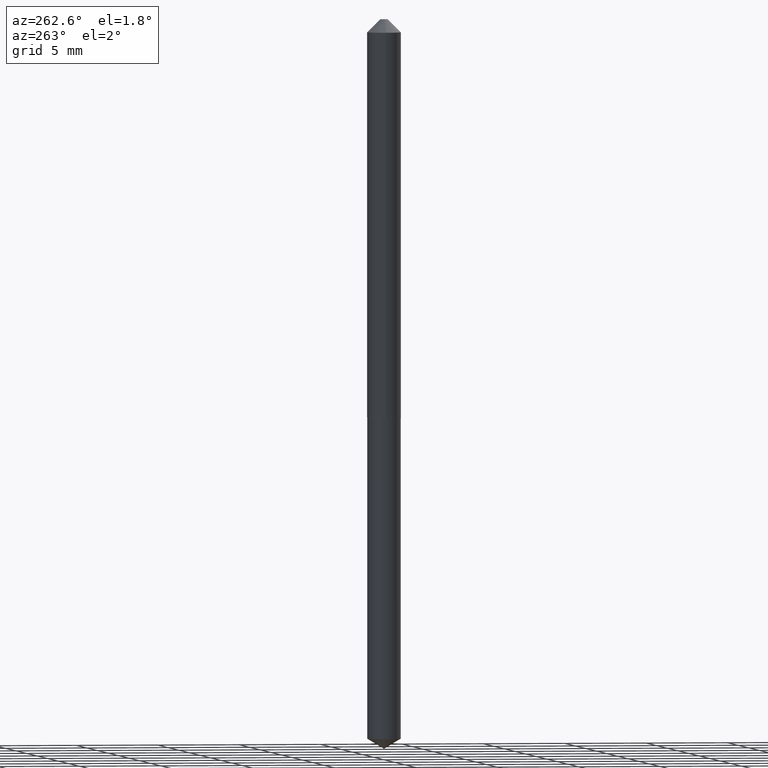
[diagram: clean part render]
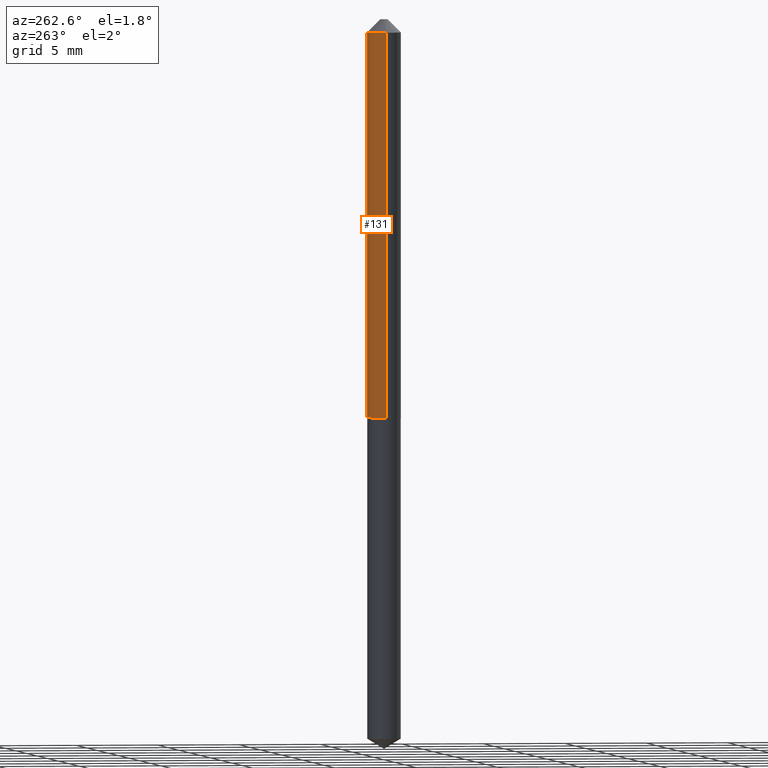
[diagram: same view with one face highlighted and labeled with its STEP entity id]
A machine part, auxiliary view. The second image highlights one B-rep face of the part: STEP entity #131.
In plain terms, the highlighted cylindrical surface (edge-blend (fillet) strip) has radius 1.0287 mm, axis along (-0, 0, 1).
Its self-contained STEP definition (entity closure, byte-faithful):
#3 = EDGE_CURVE ( 'NONE', #41, #15, #386, .T. ) ;
#9 = FACE_OUTER_BOUND ( 'NONE', #119, .T. ) ;
#11 = AXIS2_PLACEMENT_3D ( 'NONE', #390, #221, #243 ) ;
#15 = VERTEX_POINT ( 'NONE', #181 ) ;
#20 = ORIENTED_EDGE ( 'NONE', *, *, #99, .F. ) ;
#21 = AXIS2_PLACEMENT_3D ( 'NONE', #28, #355, #266 ) ;
#28 = CARTESIAN_POINT ( 'NONE',  ( 2.336645444309897725E-29, -3.336110419264625060E-15, -0.9554999999999997939 ) ) ;
#33 = DIRECTION ( 'NONE',  ( 1.000000000000000000, -6.982962677686265922E-15, 4.876176775795934672E-29 ) ) ;
#41 = VERTEX_POINT ( 'NONE', #240 ) ;
#57 = EDGE_CURVE ( 'NONE', #254, #41, #98, .T. ) ;
#85 = LINE ( 'NONE', #145, #128 ) ;
#86 = ORIENTED_EDGE ( 'NONE', *, *, #57, .T. ) ;
#98 = CIRCLE ( 'NONE', #21, 0.04050000000000011924 ) ;
#99 = EDGE_CURVE ( 'NONE', #339, #15, #204, .T. ) ;
#102 = AXIS2_PLACEMENT_3D ( 'NONE', #341, #316, #33 ) ;
#114 = DIRECTION ( 'NONE',  ( -2.445468806185136877E-29, 3.491481338843145188E-15, 1.000000000000000000 ) ) ;
#119 = EDGE_LOOP ( 'NONE', ( #86, #126, #20, #224 ) ) ;
#126 = ORIENTED_EDGE ( 'NONE', *, *, #3, .T. ) ;
#128 = VECTOR ( 'NONE', #114, 39.37007874015748143 ) ;
#131 = ADVANCED_FACE ( 'NONE', ( #9 ), #370, .T. ) ;
#145 = CARTESIAN_POINT ( 'NONE',  ( 0.04050000000000007067, -2.828099884462942771E-16, 1.974851594197357093E-30 ) ) ;
#154 = DIRECTION ( 'NONE',  ( -2.445468806185136877E-29, 3.491481338843145188E-15, 1.000000000000000000 ) ) ;
#181 = CARTESIAN_POINT ( 'NONE',  ( -0.04050000000000000822, -1.434839797568894869E-15, -0.03125000000000020817 ) ) ;
#204 = CIRCLE ( 'NONE', #11, 0.04050000000000000822 ) ;
#221 = DIRECTION ( 'NONE',  ( -2.445468806185136597E-29, 3.491481338843145583E-15, 1.000000000000000000 ) ) ;
#224 = ORIENTED_EDGE ( 'NONE', *, *, #357, .F. ) ;
#240 = CARTESIAN_POINT ( 'NONE',  ( -0.04050000000000011924, -3.048340611281783834E-15, -0.9554999999999997939 ) ) ;
#243 = DIRECTION ( 'NONE',  ( 1.000000000000000000, -6.982962677686267499E-15, 0.000000000000000000 ) ) ;
#245 = CARTESIAN_POINT ( 'NONE',  ( -0.04050000000000007067, 2.877698079828410774E-16, -1.992168711553240552E-30 ) ) ;
#254 = VERTEX_POINT ( 'NONE', #387 ) ;
#265 = CARTESIAN_POINT ( 'NONE',  ( 0.04050000000000000822, -3.919187802851428847E-16, -0.03125000000000020817 ) ) ;
#266 = DIRECTION ( 'NONE',  ( 1.000000000000000000, -6.982962677686264344E-15, 0.000000000000000000 ) ) ;
#316 = DIRECTION ( 'NONE',  ( -2.445468806185136597E-29, 3.491481338843145583E-15, 1.000000000000000000 ) ) ;
#337 = VECTOR ( 'NONE', #154, 39.37007874015748143 ) ;
#339 = VERTEX_POINT ( 'NONE', #265 ) ;
#341 = CARTESIAN_POINT ( 'NONE',  ( 0.000000000000000000, 0.000000000000000000, 0.000000000000000000 ) ) ;
#355 = DIRECTION ( 'NONE',  ( -2.445468806185136597E-29, 3.491481338843145583E-15, 1.000000000000000000 ) ) ;
#357 = EDGE_CURVE ( 'NONE', #254, #339, #85, .T. ) ;
#370 = CYLINDRICAL_SURFACE ( 'NONE', #102, 0.04050000000000007067 ) ;
#386 = LINE ( 'NONE', #245, #337 ) ;
#387 = CARTESIAN_POINT ( 'NONE',  ( 0.04050000000000011924, -3.618920407710919682E-15, -0.9554999999999997939 ) ) ;
#390 = CARTESIAN_POINT ( 'NONE',  ( 7.642090019328602662E-31, -1.091087918388490267E-16, -0.03125000000000020817 ) ) ;